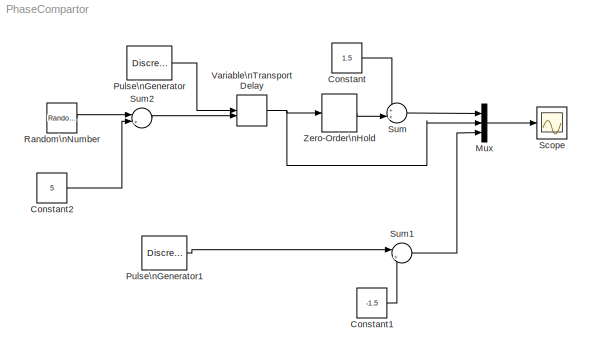
MODEL PhaseCompartor
KIND model
CONFIG AbsTol = auto
CONFIG FixedStep = auto
CONFIG MaxStep = 0.01
CONFIG MinStep = auto
CONFIG RelTol = 1e-3
CONFIG Solver = ode45
CONFIG SolverMode = Auto
CONFIG StartTime = 0.0
CONFIG StopTime = 1000
BLOCK [Constant] Constant
  Value = 1.5
BLOCK [Constant] Constant1
  Value = -1.5
BLOCK [Constant] Constant2
  Value = 5
BLOCK [Mux] Mux
  DisplayOption = bar
  Inputs = 3
  Ports = [3, 1]
BLOCK [DiscretePulseGenerator] Pulse\nGenerator
  Period = 11/2*1.01
  PhaseDelay = 1
  PulseType = Time based
  PulseWidth = 50
BLOCK [DiscretePulseGenerator] Pulse\nGenerator1
  Period = 11
  PulseType = Time based
  PulseWidth = 50
BLOCK [RandomNumber] Random\nNumber
  SampleTime = 0
  Variance = 0.1
BLOCK [Scope] Scope
  DataFormat = StructureWithTime
  LimitDataPoints = off
  NumInputPorts = 1
  Ports = [1]
  TimeRange = 600
  YMax = 3
  YMin = -2
  ZoomMode = xonly
BLOCK [Sum] Sum
  IconShape = round
  InputSameDT = off
  Inputs = ++|
  OutDataTypeMode = Inherit via internal rule
  Ports = [2, 1]
BLOCK [Sum] Sum1
  IconShape = round
  InputSameDT = off
  Inputs = |++
  OutDataTypeMode = Inherit via internal rule
  Ports = [2, 1]
BLOCK [Sum] Sum2
  IconShape = round
  InputSameDT = off
  Inputs = |++
  OutDataTypeMode = Inherit via internal rule
  Ports = [2, 1]
BLOCK [VariableTransportDelay] Variable\nTransport Delay
  MaximumDelay = 10
BLOCK [ZeroOrderHold] Zero-Order\nHold
  SampleTime = 11
LINE Constant1:1 -> Sum1:2
LINE Constant2:1 -> Sum2:2
LINE Constant:1 -> Sum:1
LINE Mux:1 -> Scope:1
LINE Pulse\nGenerator1:1 -> Sum1:1
LINE Pulse\nGenerator:1 -> Variable\nTransport Delay:1
LINE Random\nNumber:1 -> Sum2:1
LINE Sum1:1 -> Mux:3
LINE Sum2:1 -> Variable\nTransport Delay:2
LINE Sum:1 -> Mux:1
NET Variable\nTransport Delay:1 -> Mux:2, Zero-Order\nHold:1
LINE Zero-Order\nHold:1 -> Sum:2
note: NET lines group one-source signal fan-out (src -> all destinations, sorted); 1:1 wires keep LINE
